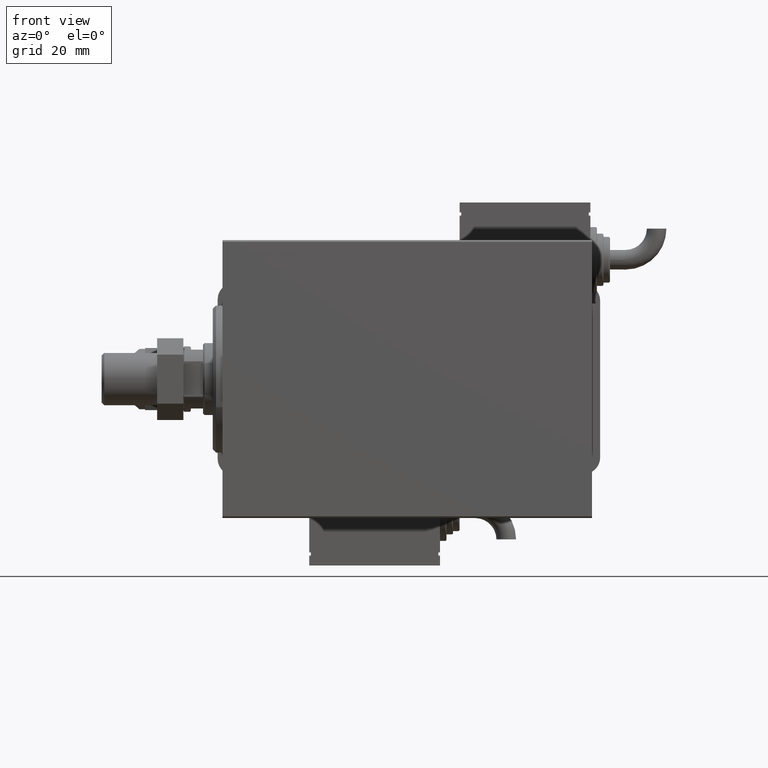
[diagram: clean part render]
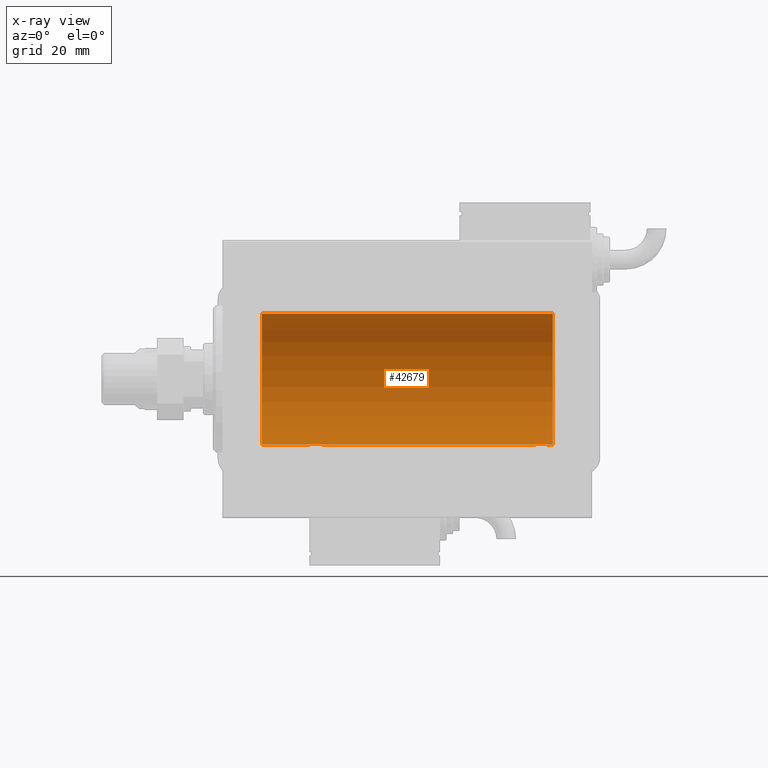
[diagram: x-ray — body ghosted, one internal face saturated and labeled with its STEP entity id]
A machine part, front view, then the same camera in x-ray: the body is ghosted and one INTERNAL B-rep face — a face not visible from any outside direction — is saturated and labeled: STEP entity #42679.
In plain terms, the highlighted cylindrical surface (partial cylindrical patch) has radius 20 mm, axis along (-1, -0, -0).
Its self-contained STEP definition (entity closure, byte-faithful):
#210 = CARTESIAN_POINT ( 'NONE',  ( 99.29753901127162408, 0.8865903856744286049, -19.98070694681039328 ) ) ;
#1656 = CARTESIAN_POINT ( 'NONE',  ( 27.49354240926169268, 1.747830109444738156, -19.92373272380676852 ) ) ;
#2254 = CARTESIAN_POINT ( 'NONE',  ( 27.97486091545001230, 1.947330458682949850, -19.90522393307485061 ) ) ;
#2555 = CARTESIAN_POINT ( 'NONE',  ( 26.50000000000000355, -6.257798774011376898E-15, -20.00000000000000000 ) ) ;
#2564 = CARTESIAN_POINT ( 'NONE',  ( 101.0000000000000000, 0.000000000000000000, 0.000000000000000000 ) ) ;
#2973 = CARTESIAN_POINT ( 'NONE',  ( 97.76241417820000379, 1.987020435121059858, -19.90106552791689154 ) ) ;
#6814 = CARTESIAN_POINT ( 'NONE',  ( 30.39789687358864967, 0.6443418861413116039, -19.98998539619404724 ) ) ;
#7139 = VERTEX_POINT ( 'NONE', #33308 ) ;
#7574 = VERTEX_POINT ( 'NONE', #59355 ) ;
#7888 = CARTESIAN_POINT ( 'NONE',  ( 11.99999999999999645, 2.449293598294706513E-15, -20.00000000000000000 ) ) ;
#8881 = ORIENTED_EDGE ( 'NONE', *, *, #59003, .T. ) ;
#9135 = CARTESIAN_POINT ( 'NONE',  ( 101.0000000000000000, 0.000000000000000000, 20.00000000000000000 ) ) ;
#9538 = ORIENTED_EDGE ( 'NONE', *, *, #41298, .F. ) ;
#11374 = AXIS2_PLACEMENT_3D ( 'NONE', #16340, #13298, #54995 ) ;
#11573 = EDGE_LOOP ( 'NONE', ( #24340, #49222, #47908, #21341, #58673, #20583, #9538, #8881 ) ) ;
#11689 = CARTESIAN_POINT ( 'NONE',  ( 30.50000000000000000, 2.449293582768389958E-15, -20.00000000000000000 ) ) ;
#11697 = DIRECTION ( 'NONE',  ( -1.000000000000000000, -0.000000000000000000, -0.000000000000000000 ) ) ;
#11816 = CARTESIAN_POINT ( 'NONE',  ( 98.50297226784951476, 1.735228749583824115, -19.92471474456648295 ) ) ;
#12117 = CARTESIAN_POINT ( 'NONE',  ( 95.76423634872107016, 1.002099838626297590, -19.97517568592527226 ) ) ;
#12149 = CARTESIAN_POINT ( 'NONE',  ( 101.0000000000000000, 2.449293598294706513E-15, -20.00000000000000000 ) ) ;
#13042 = CARTESIAN_POINT ( 'NONE',  ( 95.99384229619285236, 1.322305185229293967, -19.95645382900616482 ) ) ;
#13298 = DIRECTION ( 'NONE',  ( -1.000000000000000000, 0.000000000000000000, 0.000000000000000000 ) ) ;
#13471 = CARTESIAN_POINT ( 'NONE',  ( 30.50000000000000000, 2.449293582768389958E-15, -20.00000000000000000 ) ) ;
#14813 = EDGE_CURVE ( 'NONE', #34742, #52476, #26013, .T. ) ;
#15367 = CARTESIAN_POINT ( 'NONE',  ( 26.50000000000001066, 0.1322335637814670561, -19.99999999999999645 ) ) ;
#16110 = VERTEX_POINT ( 'NONE', #55579 ) ;
#16266 = CARTESIAN_POINT ( 'NONE',  ( 30.09007067689674741, 1.220099331833897294, -19.96304379627741099 ) ) ;
#16340 = CARTESIAN_POINT ( 'NONE',  ( 11.99999999999999645, 0.000000000000000000, 0.000000000000000000 ) ) ;
#16689 = CARTESIAN_POINT ( 'NONE',  ( 98.82060165083834136, 1.507796451871713961, -19.94330239452387943 ) ) ;
#17606 = CARTESIAN_POINT ( 'NONE',  ( 95.56384771616671969, 0.5179893069484471368, -19.99370013622814923 ) ) ;
#18122 = LINE ( 'NONE', #22381, #47558 ) ;
#20242 = CARTESIAN_POINT ( 'NONE',  ( 28.23819846102561826, 1.999905101582720279, -19.89975827978156886 ) ) ;
#20583 = ORIENTED_EDGE ( 'NONE', *, *, #21699, .T. ) ;
#20845 = CARTESIAN_POINT ( 'NONE',  ( 29.50297226784953608, 1.735228749583830332, -19.92471474456648650 ) ) ;
#21146 = CARTESIAN_POINT ( 'NONE',  ( 30.23489454601983795, 1.003547732426805617, -19.97510079925437054 ) ) ;
#21262 = CARTESIAN_POINT ( 'NONE',  ( 95.60234886833930545, 0.6450624715427437650, -19.98996196681220994 ) ) ;
#21341 = ORIENTED_EDGE ( 'NONE', *, *, #21503, .T. ) ;
#21503 = EDGE_CURVE ( 'NONE', #7574, #52476, #37659, .T. ) ;
#21568 = CARTESIAN_POINT ( 'NONE',  ( 98.01899474186110695, 1.935912154109685090, -19.90610216711450775 ) ) ;
#21699 = EDGE_CURVE ( 'NONE', #34742, #29240, #30542, .T. ) ;
#21754 = FACE_OUTER_BOUND ( 'NONE', #11573, .T. ) ;
#22381 = CARTESIAN_POINT ( 'NONE',  ( 101.0000000000000000, 2.449293598294706513E-15, -20.00000000000000000 ) ) ;
#22486 = CARTESIAN_POINT ( 'NONE',  ( 96.97486091545003717, 1.947330458682935417, -19.90522393307484705 ) ) ;
#22516 = DIRECTION ( 'NONE',  ( -1.000000000000000000, -0.000000000000000000, -0.000000000000000000 ) ) ;
#22988 = DIRECTION ( 'NONE',  ( -1.000000000000000000, -0.000000000000000000, -0.000000000000000000 ) ) ;
#23090 = CARTESIAN_POINT ( 'NONE',  ( 99.50000000000000000, 2.449293582762473501E-15, -20.00000000000000000 ) ) ;
#24340 = ORIENTED_EDGE ( 'NONE', *, *, #52538, .F. ) ;
#24781 = CARTESIAN_POINT ( 'NONE',  ( 99.49999999999997158, 0.1305706983324442239, -19.99999999999999645 ) ) ;
#24802 = CARTESIAN_POINT ( 'NONE',  ( 27.27049887769365810, 1.598854313793178994, -19.93684595445884256 ) ) ;
#25693 = CARTESIAN_POINT ( 'NONE',  ( 30.50000000000000000, 0.1305706983324451675, -19.99999999999999289 ) ) ;
#26013 = LINE ( 'NONE', #49143, #45351 ) ;
#26305 = DIRECTION ( 'NONE',  ( -1.000000000000000000, -0.000000000000000000, -0.000000000000000000 ) ) ;
#27039 = CARTESIAN_POINT ( 'NONE',  ( 96.27049887769366876, 1.598854313793167448, -19.93684595445884966 ) ) ;
#27333 = CARTESIAN_POINT ( 'NONE',  ( 99.39789687358863546, 0.6443418861413100496, -19.98998539619404369 ) ) ;
#27396 = LINE ( 'NONE', #59969, #36258 ) ;
#29240 = VERTEX_POINT ( 'NONE', #13471 ) ;
#29366 = CARTESIAN_POINT ( 'NONE',  ( 26.70278656943304796, 0.8872481584516701547, -19.98067755938510004 ) ) ;
#30378 = CARTESIAN_POINT ( 'NONE',  ( 98.71960275349742631, 1.590453176650910905, -19.93679350243183634 ) ) ;
#30542 = B_SPLINE_CURVE_WITH_KNOTS ( 'NONE', 3,
 ( #2555, #15367, #33946, #57976, #52510, #29366, #30554, #39413, #47946, #24802, #1656, #2254, #20242, #58256, #34543, #34838, #57376, #48531, #20845, #34243, #39106, #57676, #16266, #21146, #38811, #6814, #39710, #53389, #25693, #11689 ),
 .UNSPECIFIED., .F., .F.,
 ( 4, 2, 2, 2, 2, 2, 2, 2, 2, 2, 2, 2, 2, 2, 4 ),
 ( 5.963022395843225278E-20, 0.0003910512220831150344, 0.0007821024441662300687, 0.001173153666249344886, 0.001564204888332459921, 0.002346307332498689339, 0.003128409776664918974, 0.003519460998748033791, 0.003910512220831149043, 0.004301563442914263860, 0.004692614664997378678, 0.005083665887080494362, 0.005474717109163609180, 0.005865768331246723997, 0.006256819553329837948 ),
 .UNSPECIFIED. ) ;
#30554 = CARTESIAN_POINT ( 'NONE',  ( 26.76423634872104884, 1.002099838626308248, -19.97517568592526160 ) ) ;
#33308 = CARTESIAN_POINT ( 'NONE',  ( 95.50000000000000000, -1.207436508668459186E-14, -20.00000000000000000 ) ) ;
#33946 = CARTESIAN_POINT ( 'NONE',  ( 26.51298505384673732, 0.2622407139811037680, -19.99868965376114716 ) ) ;
#34204 = EDGE_CURVE ( 'NONE', #54439, #16110, #59749, .T. ) ;
#34243 = CARTESIAN_POINT ( 'NONE',  ( 29.71960275349742986, 1.590453176650915346, -19.93679350243183634 ) ) ;
#34543 = CARTESIAN_POINT ( 'NONE',  ( 28.76241417820002155, 1.987020435121070516, -19.90106552791689154 ) ) ;
#34742 = VERTEX_POINT ( 'NONE', #35115 ) ;
#34838 = CARTESIAN_POINT ( 'NONE',  ( 29.01899474186110695, 1.935912154109695082, -19.90610216711450420 ) ) ;
#34966 = CARTESIAN_POINT ( 'NONE',  ( 97.23819846102563247, 1.999905101582708511, -19.89975827978156886 ) ) ;
#35115 = CARTESIAN_POINT ( 'NONE',  ( 26.50000000000000355, -6.257798774011376898E-15, -20.00000000000000000 ) ) ;
#35269 = CARTESIAN_POINT ( 'NONE',  ( 99.00738641543988194, 1.321069663197655952, -19.95654117037011943 ) ) ;
#36180 = CARTESIAN_POINT ( 'NONE',  ( 95.70278656943304441, 0.8872481584516571651, -19.98067755938510359 ) ) ;
#36258 = VECTOR ( 'NONE', #55404, 1000.000000000000000 ) ;
#37659 = CIRCLE ( 'NONE', #11374, 20.00000000000000000 ) ;
#38811 = CARTESIAN_POINT ( 'NONE',  ( 30.29753901127163118, 0.8865903856744307143, -19.98070694681039683 ) ) ;
#39106 = CARTESIAN_POINT ( 'NONE',  ( 29.82060165083834846, 1.507796451871724175, -19.94330239452387943 ) ) ;
#39281 = B_SPLINE_CURVE_WITH_KNOTS ( 'NONE', 3,
 ( #59299, #49555, #40454, #17606, #21262, #36180, #12117, #54732, #13042, #27039, #39834, #22486, #34966, #41056, #2973, #21568, #58383, #53519, #11816, #30378, #16689, #35269, #58683, #47923, #210, #27333, #45914, #51089, #24781, #23090 ),
 .UNSPECIFIED., .F., .F.,
 ( 4, 2, 2, 2, 2, 2, 2, 2, 2, 2, 2, 2, 2, 2, 4 ),
 ( 2.320328224351160231E-18, 0.0003910512220831150344, 0.0007821024441662276835, 0.001173153666249340766, 0.001564204888332453849, 0.002346307332498709722, 0.003128409776664966245, 0.003519460998748073256, 0.003910512220831181135, 0.004301563442914288146, 0.004692614664997395157, 0.005083665887080503036, 0.005474717109163609180, 0.005865768331246717059, 0.006256819553329824070 ),
 .UNSPECIFIED. ) ;
#39413 = CARTESIAN_POINT ( 'NONE',  ( 26.90940266542447645, 1.219458756546263789, -19.96308513509966787 ) ) ;
#39710 = CARTESIAN_POINT ( 'NONE',  ( 30.43573148867292488, 0.5196544277756701691, -19.99365919015135518 ) ) ;
#39834 = CARTESIAN_POINT ( 'NONE',  ( 96.49354240926167847, 1.747830109444723945, -19.92373272380677207 ) ) ;
#40328 = DIRECTION ( 'NONE',  ( 0.000000000000000000, 0.000000000000000000, 1.000000000000000000 ) ) ;
#40454 = CARTESIAN_POINT ( 'NONE',  ( 95.51298505384673376, 0.2622407139810962184, -19.99868965376115071 ) ) ;
#41056 = CARTESIAN_POINT ( 'NONE',  ( 97.62981181290705024, 2.000047251570872930, -19.89974399317116038 ) ) ;
#41298 = EDGE_CURVE ( 'NONE', #7139, #29240, #18122, .T. ) ;
#42056 = VECTOR ( 'NONE', #22516, 1000.000000000000000 ) ;
#42581 = CARTESIAN_POINT ( 'NONE',  ( 101.0000000000000000, 0.000000000000000000, 0.000000000000000000 ) ) ;
#42679 = ADVANCED_FACE ( 'NONE', ( #21754 ), #58879, .F. ) ;
#44629 = VERTEX_POINT ( 'NONE', #56736 ) ;
#45351 = VECTOR ( 'NONE', #26305, 1000.000000000000000 ) ;
#45914 = CARTESIAN_POINT ( 'NONE',  ( 99.43573148867290001, 0.5196544277756670605, -19.99365919015135518 ) ) ;
#47558 = VECTOR ( 'NONE', #22988, 1000.000000000000000 ) ;
#47908 = ORIENTED_EDGE ( 'NONE', *, *, #54392, .T. ) ;
#47923 = CARTESIAN_POINT ( 'NONE',  ( 99.23489454601983084, 1.003547732426797623, -19.97510079925437410 ) ) ;
#47946 = CARTESIAN_POINT ( 'NONE',  ( 26.99384229619287012, 1.322305185229304625, -19.95645382900617548 ) ) ;
#48531 = CARTESIAN_POINT ( 'NONE',  ( 29.38596189455837049, 1.797847595792762432, -19.91909332229799290 ) ) ;
#49143 = CARTESIAN_POINT ( 'NONE',  ( 101.0000000000000000, 2.449293598294706513E-15, -20.00000000000000000 ) ) ;
#49222 = ORIENTED_EDGE ( 'NONE', *, *, #34204, .F. ) ;
#49555 = CARTESIAN_POINT ( 'NONE',  ( 95.50000000000001421, 0.1322335637814586184, -20.00000000000000711 ) ) ;
#51089 = CARTESIAN_POINT ( 'NONE',  ( 99.48691292011447729, 0.2631998640366432496, -19.99867931558985745 ) ) ;
#52000 = DIRECTION ( 'NONE',  ( 0.000000000000000000, 0.000000000000000000, 1.000000000000000000 ) ) ;
#52476 = VERTEX_POINT ( 'NONE', #7888 ) ;
#52510 = CARTESIAN_POINT ( 'NONE',  ( 26.60234886833925927, 0.6450624715427553113, -19.98996196681220638 ) ) ;
#52538 = EDGE_CURVE ( 'NONE', #16110, #44629, #53843, .T. ) ;
#53389 = CARTESIAN_POINT ( 'NONE',  ( 30.48691292011447374, 0.2631998640366455255, -19.99867931558985745 ) ) ;
#53519 = CARTESIAN_POINT ( 'NONE',  ( 98.38596189455837759, 1.797847595792753772, -19.91909332229798579 ) ) ;
#53843 = LINE ( 'NONE', #12149, #42056 ) ;
#54392 = EDGE_CURVE ( 'NONE', #54439, #7574, #27396, .T. ) ;
#54439 = VERTEX_POINT ( 'NONE', #9135 ) ;
#54732 = CARTESIAN_POINT ( 'NONE',  ( 95.90940266542446579, 1.219458756546251355, -19.96308513509966787 ) ) ;
#54995 = DIRECTION ( 'NONE',  ( 0.000000000000000000, 0.000000000000000000, 1.000000000000000000 ) ) ;
#55404 = DIRECTION ( 'NONE',  ( -1.000000000000000000, -0.000000000000000000, -0.000000000000000000 ) ) ;
#55579 = CARTESIAN_POINT ( 'NONE',  ( 101.0000000000000000, 2.449293598294706513E-15, -20.00000000000000000 ) ) ;
#56567 = DIRECTION ( 'NONE',  ( -1.000000000000000000, 0.000000000000000000, 0.000000000000000000 ) ) ;
#56736 = CARTESIAN_POINT ( 'NONE',  ( 99.50000000000000000, 2.449293582762473501E-15, -20.00000000000000000 ) ) ;
#56834 = AXIS2_PLACEMENT_3D ( 'NONE', #42581, #56567, #52000 ) ;
#57376 = CARTESIAN_POINT ( 'NONE',  ( 29.14371130639851160, 1.898109641280501636, -19.90978941500366872 ) ) ;
#57676 = CARTESIAN_POINT ( 'NONE',  ( 30.00738641543989260, 1.321069663197666388, -19.95654117037011588 ) ) ;
#57976 = CARTESIAN_POINT ( 'NONE',  ( 26.56384771616671969, 0.5179893069484556856, -19.99370013622814568 ) ) ;
#58256 = CARTESIAN_POINT ( 'NONE',  ( 28.62981181290706090, 2.000047251570884477, -19.89974399317115683 ) ) ;
#58383 = CARTESIAN_POINT ( 'NONE',  ( 98.14371130639851515, 1.898109641280492532, -19.90978941500366872 ) ) ;
#58673 = ORIENTED_EDGE ( 'NONE', *, *, #14813, .F. ) ;
#58683 = CARTESIAN_POINT ( 'NONE',  ( 99.09007067689672965, 1.220099331833888412, -19.96304379627741099 ) ) ;
#58879 = CYLINDRICAL_SURFACE ( 'NONE', #60262, 20.00000000000000000 ) ;
#59003 = EDGE_CURVE ( 'NONE', #7139, #44629, #39281, .T. ) ;
#59299 = CARTESIAN_POINT ( 'NONE',  ( 95.50000000000000000, -1.207436508668459186E-14, -20.00000000000000000 ) ) ;
#59355 = CARTESIAN_POINT ( 'NONE',  ( 11.99999999999999645, 0.000000000000000000, 20.00000000000000000 ) ) ;
#59749 = CIRCLE ( 'NONE', #56834, 20.00000000000000000 ) ;
#59969 = CARTESIAN_POINT ( 'NONE',  ( 101.0000000000000000, 0.000000000000000000, 20.00000000000000000 ) ) ;
#60262 = AXIS2_PLACEMENT_3D ( 'NONE', #2564, #11697, #40328 ) ;